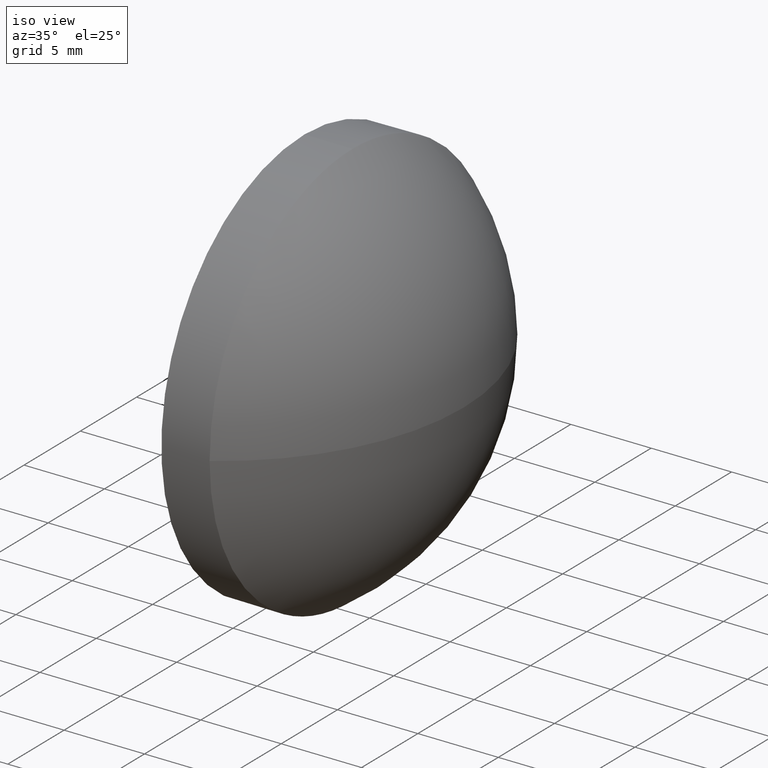
[diagram: clean part render]
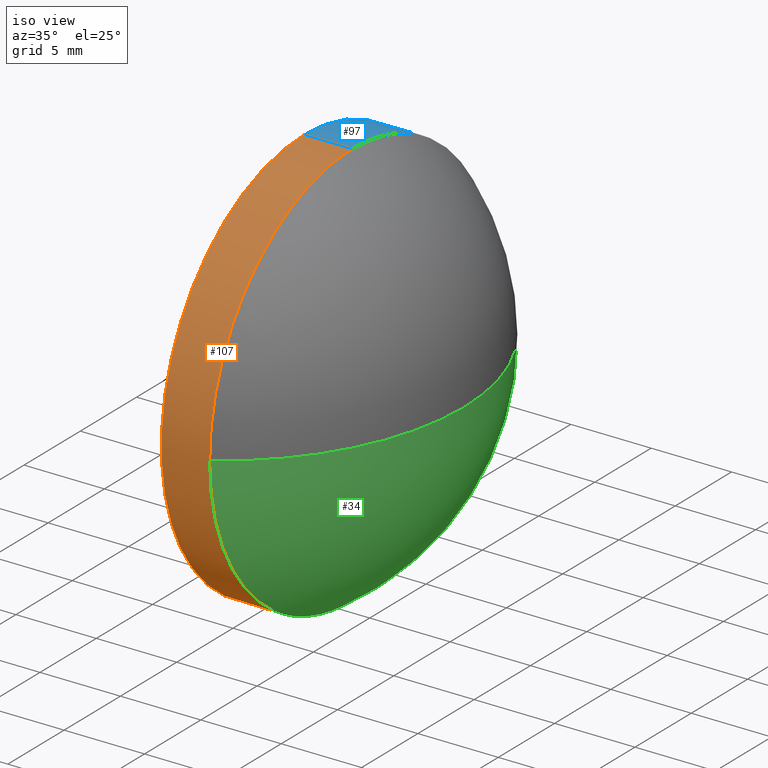
[diagram: same view with three faces highlighted in distinct colors, each labeled with its STEP entity id]
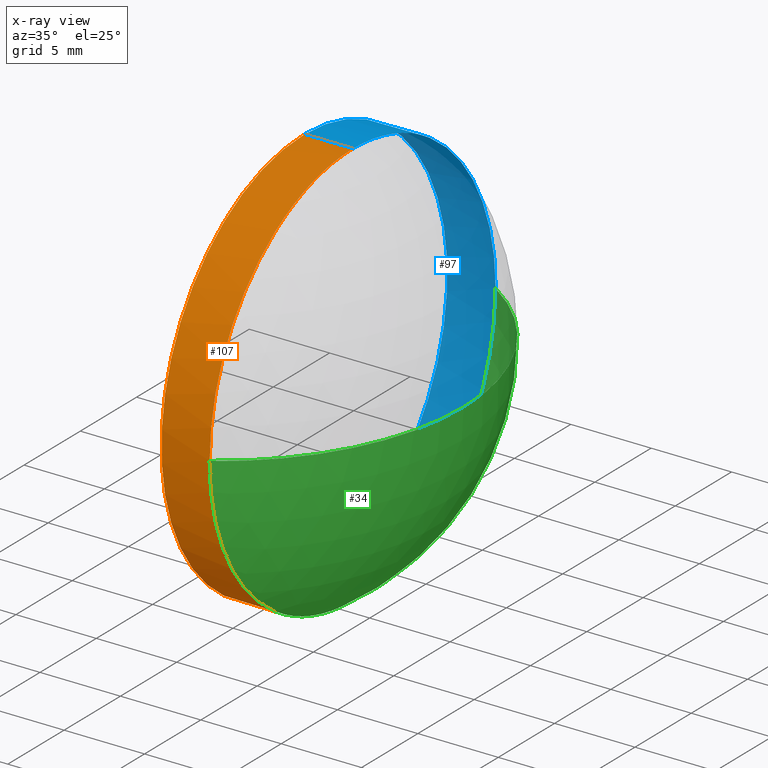
[diagram: x-ray of the same camera — body ghosted, the three highlighted faces saturated]
A machine part, iso view with three faces highlighted in distinct colors.
The next image is the same camera in x-ray (body ghosted, the three faces saturated) — at least one of them is partly hidden behind the body in this view.
Their STEP definitions:

[orange] entity #107 — the highlighted cylindrical surface (partial cylindrical patch) has radius 12.7 mm, axis along (-1, -0, -0).
#8 = EDGE_CURVE ( 'NONE', #147, #178, #183, .T. ) ;
#13 = ORIENTED_EDGE ( 'NONE', *, *, #36, .F. ) ;
#18 = CARTESIAN_POINT ( 'NONE',  ( 118.7754838021861900, 65.23355492641219700, 0.0000000000000000000 ) ) ;
#22 = DIRECTION ( 'NONE',  ( -1.000000000000000000, -0.0000000000000000000, -0.0000000000000000000 ) ) ;
#25 = CARTESIAN_POINT ( 'NONE',  ( 110.1653732284884500, 65.23355492641219700, 0.0000000000000000000 ) ) ;
#27 = CARTESIAN_POINT ( 'NONE',  ( 118.7754838021861900, 52.53355492641219400, -1.555301434917138200E-015 ) ) ;
#36 = EDGE_CURVE ( 'NONE', #103, #137, #162, .T. ) ;
#40 = CARTESIAN_POINT ( 'NONE',  ( 110.1653732284884500, 65.23355492641219700, -12.70000000000000300 ) ) ;
#43 = AXIS2_PLACEMENT_3D ( 'NONE', #18, #83, #109 ) ;
#54 = CIRCLE ( 'NONE', #140, 12.70000000000000300 ) ;
#59 = VECTOR ( 'NONE', #22, 1000.000000000000000 ) ;
#60 = DIRECTION ( 'NONE',  ( 0.0000000000000000000, 0.0000000000000000000, 1.000000000000000000 ) ) ;
#61 = DIRECTION ( 'NONE',  ( -1.000000000000000000, -0.0000000000000000000, -0.0000000000000000000 ) ) ;
#63 = ORIENTED_EDGE ( 'NONE', *, *, #79, .F. ) ;
#72 = CARTESIAN_POINT ( 'NONE',  ( 118.7754838021861900, 65.23355492641219700, 0.0000000000000000000 ) ) ;
#79 = EDGE_CURVE ( 'NONE', #147, #103, #141, .T. ) ;
#80 = CARTESIAN_POINT ( 'NONE',  ( 115.7736064308381300, 65.23355492641219700, 0.0000000000000000000 ) ) ;
#83 = DIRECTION ( 'NONE',  ( -1.000000000000000000, -0.0000000000000000000, -0.0000000000000000000 ) ) ;
#84 = CARTESIAN_POINT ( 'NONE',  ( 115.7736064308381300, 65.23355492641219700, -12.70000000000000300 ) ) ;
#88 = EDGE_CURVE ( 'NONE', #91, #137, #93, .T. ) ;
#91 = VERTEX_POINT ( 'NONE', #181 ) ;
#93 = LINE ( 'NONE', #94, #127 ) ;
#94 = CARTESIAN_POINT ( 'NONE',  ( 110.1653732284884500, 65.23355492641219700, 12.70000000000000300 ) ) ;
#102 = AXIS2_PLACEMENT_3D ( 'NONE', #25, #185, #60 ) ;
#103 = VERTEX_POINT ( 'NONE', #84 ) ;
#107 = ADVANCED_FACE ( 'NONE', ( #120 ), #156, .T. ) ;
#109 = DIRECTION ( 'NONE',  ( 0.0000000000000000000, 0.0000000000000000000, 1.000000000000000000 ) ) ;
#111 = ORIENTED_EDGE ( 'NONE', *, *, #88, .T. ) ;
#114 = CARTESIAN_POINT ( 'NONE',  ( 118.7754838021861900, 65.23355492641219700, -12.70000000000000300 ) ) ;
#118 = ORIENTED_EDGE ( 'NONE', *, *, #177, .T. ) ;
#120 = FACE_OUTER_BOUND ( 'NONE', #150, .T. ) ;
#124 = DIRECTION ( 'NONE',  ( 0.0000000000000000000, 0.0000000000000000000, 1.000000000000000000 ) ) ;
#127 = VECTOR ( 'NONE', #138, 1000.000000000000000 ) ;
#137 = VERTEX_POINT ( 'NONE', #143 ) ;
#138 = DIRECTION ( 'NONE',  ( -1.000000000000000000, -0.0000000000000000000, -0.0000000000000000000 ) ) ;
#140 = AXIS2_PLACEMENT_3D ( 'NONE', #72, #61, #167 ) ;
#141 = LINE ( 'NONE', #40, #59 ) ;
#143 = CARTESIAN_POINT ( 'NONE',  ( 115.7736064308381300, 65.23355492641219700, 12.70000000000000300 ) ) ;
#147 = VERTEX_POINT ( 'NONE', #114 ) ;
#150 = EDGE_LOOP ( 'NONE', ( #63, #172, #118, #111, #13 ) ) ;
#156 = CYLINDRICAL_SURFACE ( 'NONE', #102, 12.70000000000000300 ) ;
#162 = CIRCLE ( 'NONE', #182, 12.70000000000000300 ) ;
#166 = DIRECTION ( 'NONE',  ( -1.000000000000000000, -0.0000000000000000000, -0.0000000000000000000 ) ) ;
#167 = DIRECTION ( 'NONE',  ( 0.0000000000000000000, 0.0000000000000000000, 1.000000000000000000 ) ) ;
#172 = ORIENTED_EDGE ( 'NONE', *, *, #8, .T. ) ;
#177 = EDGE_CURVE ( 'NONE', #178, #91, #54, .T. ) ;
#178 = VERTEX_POINT ( 'NONE', #27 ) ;
#181 = CARTESIAN_POINT ( 'NONE',  ( 118.7754838021861900, 65.23355492641219700, 12.70000000000000300 ) ) ;
#182 = AXIS2_PLACEMENT_3D ( 'NONE', #80, #166, #124 ) ;
#183 = CIRCLE ( 'NONE', #43, 12.70000000000000300 ) ;
#185 = DIRECTION ( 'NONE',  ( -1.000000000000000000, -0.0000000000000000000, -0.0000000000000000000 ) ) ;

[blue] entity #97 — the highlighted cylindrical surface (partial cylindrical patch) has radius 12.7 mm, axis along (-1, -0, -0).
#2 = AXIS2_PLACEMENT_3D ( 'NONE', #179, #170, #69 ) ;
#4 = EDGE_CURVE ( 'NONE', #186, #147, #66, .T. ) ;
#20 = DIRECTION ( 'NONE',  ( -1.000000000000000000, -0.0000000000000000000, -0.0000000000000000000 ) ) ;
#21 = DIRECTION ( 'NONE',  ( -1.000000000000000000, -0.0000000000000000000, -0.0000000000000000000 ) ) ;
#22 = DIRECTION ( 'NONE',  ( -1.000000000000000000, -0.0000000000000000000, -0.0000000000000000000 ) ) ;
#31 = EDGE_CURVE ( 'NONE', #91, #186, #35, .T. ) ;
#35 = CIRCLE ( 'NONE', #82, 12.70000000000000300 ) ;
#39 = ORIENTED_EDGE ( 'NONE', *, *, #79, .T. ) ;
#40 = CARTESIAN_POINT ( 'NONE',  ( 110.1653732284884500, 65.23355492641219700, -12.70000000000000300 ) ) ;
#42 = CARTESIAN_POINT ( 'NONE',  ( 110.1653732284884500, 65.23355492641219700, 0.0000000000000000000 ) ) ;
#51 = ORIENTED_EDGE ( 'NONE', *, *, #4, .T. ) ;
#53 = FACE_OUTER_BOUND ( 'NONE', #96, .T. ) ;
#59 = VECTOR ( 'NONE', #22, 1000.000000000000000 ) ;
#65 = AXIS2_PLACEMENT_3D ( 'NONE', #42, #20, #184 ) ;
#66 = CIRCLE ( 'NONE', #2, 12.70000000000000300 ) ;
#69 = DIRECTION ( 'NONE',  ( 0.0000000000000000000, 0.0000000000000000000, 1.000000000000000000 ) ) ;
#76 = EDGE_CURVE ( 'NONE', #137, #103, #134, .T. ) ;
#77 = ORIENTED_EDGE ( 'NONE', *, *, #88, .F. ) ;
#79 = EDGE_CURVE ( 'NONE', #147, #103, #141, .T. ) ;
#82 = AXIS2_PLACEMENT_3D ( 'NONE', #122, #108, #98 ) ;
#84 = CARTESIAN_POINT ( 'NONE',  ( 115.7736064308381300, 65.23355492641219700, -12.70000000000000300 ) ) ;
#88 = EDGE_CURVE ( 'NONE', #91, #137, #93, .T. ) ;
#91 = VERTEX_POINT ( 'NONE', #181 ) ;
#93 = LINE ( 'NONE', #94, #127 ) ;
#94 = CARTESIAN_POINT ( 'NONE',  ( 110.1653732284884500, 65.23355492641219700, 12.70000000000000300 ) ) ;
#96 = EDGE_LOOP ( 'NONE', ( #51, #39, #115, #77, #153 ) ) ;
#97 = ADVANCED_FACE ( 'NONE', ( #53 ), #130, .T. ) ;
#98 = DIRECTION ( 'NONE',  ( 0.0000000000000000000, 0.0000000000000000000, 1.000000000000000000 ) ) ;
#103 = VERTEX_POINT ( 'NONE', #84 ) ;
#108 = DIRECTION ( 'NONE',  ( -1.000000000000000000, -0.0000000000000000000, -0.0000000000000000000 ) ) ;
#114 = CARTESIAN_POINT ( 'NONE',  ( 118.7754838021861900, 65.23355492641219700, -12.70000000000000300 ) ) ;
#115 = ORIENTED_EDGE ( 'NONE', *, *, #76, .F. ) ;
#119 = AXIS2_PLACEMENT_3D ( 'NONE', #151, #21, #154 ) ;
#122 = CARTESIAN_POINT ( 'NONE',  ( 118.7754838021861900, 65.23355492641219700, 0.0000000000000000000 ) ) ;
#127 = VECTOR ( 'NONE', #138, 1000.000000000000000 ) ;
#129 = CARTESIAN_POINT ( 'NONE',  ( 118.7754838021861900, 77.93355492641218500, 0.0000000000000000000 ) ) ;
#130 = CYLINDRICAL_SURFACE ( 'NONE', #65, 12.70000000000000300 ) ;
#134 = CIRCLE ( 'NONE', #119, 12.70000000000000300 ) ;
#137 = VERTEX_POINT ( 'NONE', #143 ) ;
#138 = DIRECTION ( 'NONE',  ( -1.000000000000000000, -0.0000000000000000000, -0.0000000000000000000 ) ) ;
#141 = LINE ( 'NONE', #40, #59 ) ;
#143 = CARTESIAN_POINT ( 'NONE',  ( 115.7736064308381300, 65.23355492641219700, 12.70000000000000300 ) ) ;
#147 = VERTEX_POINT ( 'NONE', #114 ) ;
#151 = CARTESIAN_POINT ( 'NONE',  ( 115.7736064308381300, 65.23355492641219700, 0.0000000000000000000 ) ) ;
#153 = ORIENTED_EDGE ( 'NONE', *, *, #31, .T. ) ;
#154 = DIRECTION ( 'NONE',  ( 0.0000000000000000000, 0.0000000000000000000, 1.000000000000000000 ) ) ;
#170 = DIRECTION ( 'NONE',  ( -1.000000000000000000, -0.0000000000000000000, -0.0000000000000000000 ) ) ;
#179 = CARTESIAN_POINT ( 'NONE',  ( 118.7754838021861900, 65.23355492641219700, 0.0000000000000000000 ) ) ;
#181 = CARTESIAN_POINT ( 'NONE',  ( 118.7754838021861900, 65.23355492641219700, 12.70000000000000300 ) ) ;
#184 = DIRECTION ( 'NONE',  ( 0.0000000000000000000, 0.0000000000000000000, 1.000000000000000000 ) ) ;
#186 = VERTEX_POINT ( 'NONE', #129 ) ;

[green] entity #34 — the highlighted spherical surface has radius 15.128 mm.
#2 = AXIS2_PLACEMENT_3D ( 'NONE', #179, #170, #69 ) ;
#4 = EDGE_CURVE ( 'NONE', #186, #147, #66, .T. ) ;
#5 = DIRECTION ( 'NONE',  ( -0.0000000000000000000, 0.0000000000000000000, -1.000000000000000000 ) ) ;
#8 = EDGE_CURVE ( 'NONE', #147, #178, #183, .T. ) ;
#9 = DIRECTION ( 'NONE',  ( 0.0000000000000000000, 1.224646799147353200E-016, -1.000000000000000000 ) ) ;
#18 = CARTESIAN_POINT ( 'NONE',  ( 118.7754838021861900, 65.23355492641219700, 0.0000000000000000000 ) ) ;
#19 = CIRCLE ( 'NONE', #52, 15.12800000000000200 ) ;
#24 = ORIENTED_EDGE ( 'NONE', *, *, #4, .F. ) ;
#27 = CARTESIAN_POINT ( 'NONE',  ( 118.7754838021861900, 52.53355492641219400, -1.555301434917138200E-015 ) ) ;
#29 = AXIS2_PLACEMENT_3D ( 'NONE', #142, #112, #173 ) ;
#34 = ADVANCED_FACE ( 'NONE', ( #64 ), #104, .T. ) ;
#43 = AXIS2_PLACEMENT_3D ( 'NONE', #18, #83, #109 ) ;
#44 = CARTESIAN_POINT ( 'NONE',  ( 110.5556064308381300, 65.23355492641219700, 0.0000000000000000000 ) ) ;
#50 = VERTEX_POINT ( 'NONE', #56 ) ;
#52 = AXIS2_PLACEMENT_3D ( 'NONE', #44, #9, #74 ) ;
#56 = CARTESIAN_POINT ( 'NONE',  ( 125.6836064308381300, 65.23355492641219700, 0.0000000000000000000 ) ) ;
#57 = AXIS2_PLACEMENT_3D ( 'NONE', #164, #5, #136 ) ;
#64 = FACE_OUTER_BOUND ( 'NONE', #158, .T. ) ;
#66 = CIRCLE ( 'NONE', #2, 12.70000000000000300 ) ;
#69 = DIRECTION ( 'NONE',  ( 0.0000000000000000000, 0.0000000000000000000, 1.000000000000000000 ) ) ;
#74 = DIRECTION ( 'NONE',  ( 0.0000000000000000000, 1.000000000000000000, 1.224646799147352700E-016 ) ) ;
#83 = DIRECTION ( 'NONE',  ( -1.000000000000000000, -0.0000000000000000000, -0.0000000000000000000 ) ) ;
#92 = EDGE_CURVE ( 'NONE', #50, #178, #19, .T. ) ;
#104 = SPHERICAL_SURFACE ( 'NONE', #57, 15.12799999999999500 ) ;
#109 = DIRECTION ( 'NONE',  ( 0.0000000000000000000, 0.0000000000000000000, 1.000000000000000000 ) ) ;
#112 = DIRECTION ( 'NONE',  ( -0.0000000000000000000, 0.0000000000000000000, 1.000000000000000000 ) ) ;
#114 = CARTESIAN_POINT ( 'NONE',  ( 118.7754838021861900, 65.23355492641219700, -12.70000000000000300 ) ) ;
#129 = CARTESIAN_POINT ( 'NONE',  ( 118.7754838021861900, 77.93355492641218500, 0.0000000000000000000 ) ) ;
#132 = ORIENTED_EDGE ( 'NONE', *, *, #169, .F. ) ;
#136 = DIRECTION ( 'NONE',  ( 0.0000000000000000000, 1.000000000000000000, 0.0000000000000000000 ) ) ;
#142 = CARTESIAN_POINT ( 'NONE',  ( 110.5556064308381300, 65.23355492641219700, 0.0000000000000000000 ) ) ;
#147 = VERTEX_POINT ( 'NONE', #114 ) ;
#158 = EDGE_LOOP ( 'NONE', ( #132, #176, #175, #24 ) ) ;
#159 = CIRCLE ( 'NONE', #29, 15.12799999999998900 ) ;
#164 = CARTESIAN_POINT ( 'NONE',  ( 110.5556064308381300, 65.23355492641219700, 0.0000000000000000000 ) ) ;
#169 = EDGE_CURVE ( 'NONE', #50, #186, #159, .T. ) ;
#170 = DIRECTION ( 'NONE',  ( -1.000000000000000000, -0.0000000000000000000, -0.0000000000000000000 ) ) ;
#173 = DIRECTION ( 'NONE',  ( 1.000000000000000000, 0.0000000000000000000, 0.0000000000000000000 ) ) ;
#175 = ORIENTED_EDGE ( 'NONE', *, *, #8, .F. ) ;
#176 = ORIENTED_EDGE ( 'NONE', *, *, #92, .T. ) ;
#178 = VERTEX_POINT ( 'NONE', #27 ) ;
#179 = CARTESIAN_POINT ( 'NONE',  ( 118.7754838021861900, 65.23355492641219700, 0.0000000000000000000 ) ) ;
#183 = CIRCLE ( 'NONE', #43, 12.70000000000000300 ) ;
#186 = VERTEX_POINT ( 'NONE', #129 ) ;